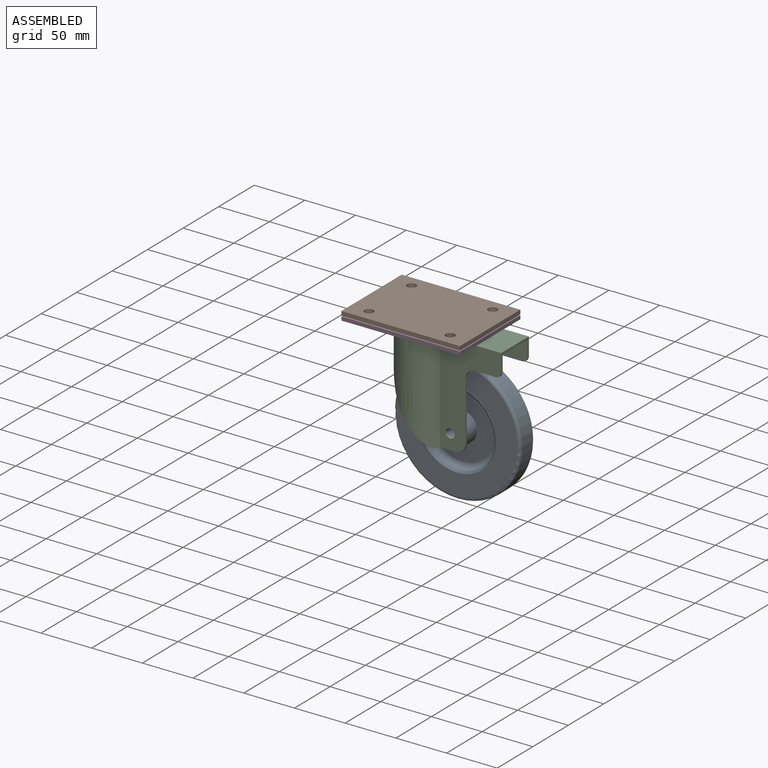
[diagram: assembled view]
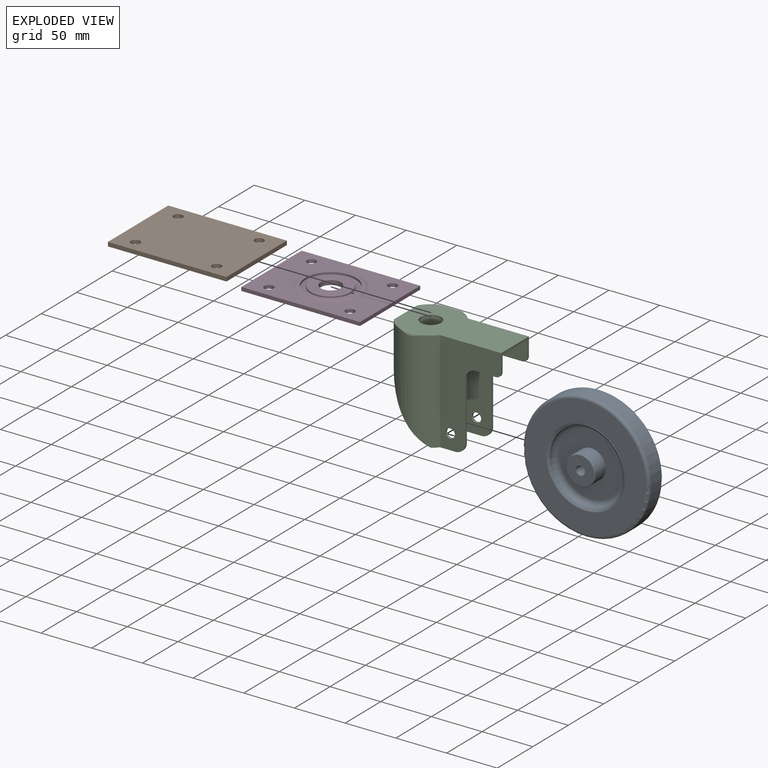
[diagram: exploded view]
GUIDED TOUR — MATED ASSEMBLY (Onshape document e975328ce0a923e729e199c3, AutoMate assembly e975328ce0a923e729e199c3_2dd56eb898bb8aa83c0dddc5_2271837c3e001083fc5a1bf0_default)

This assembly has 4 components, labeled P0..P3 below (a component is one placed occurrence of a part; the same part can appear more than once), held together by 0 mates. A mate is a constraint between two components; its type names the relative motion it leaves free:
Axis/direction vectors are unit vectors and 'through' points are millimeter coordinates, both in the assembly's world frame.

MATES

ASSEMBLY ORDER
  1. P2 — the base component [order verified]
  2. P0 [order verified]
  3. P3 [order verified]
  4. P1 [order verified]
Order-tag legend:
  [order verified] — this step's position reverses a verified removal order: the component was checked to insert without passing through the ones already placed.

Of the 4 components, 3 carry the full construction recipe — the FeatureScript program that regenerates the part's solid from scratch; the rest are supplied as boundary geometry only.
Each toured component is shown spotlighted twice — in the assembled view, then in the exploded view, where a leader line traces a displaced component back to its assembled socket (saturated green if recipe-attached, orange if geometry-only; every other component desaturated gray) — followed by its recipe or geometry summary and the mates that hold it.
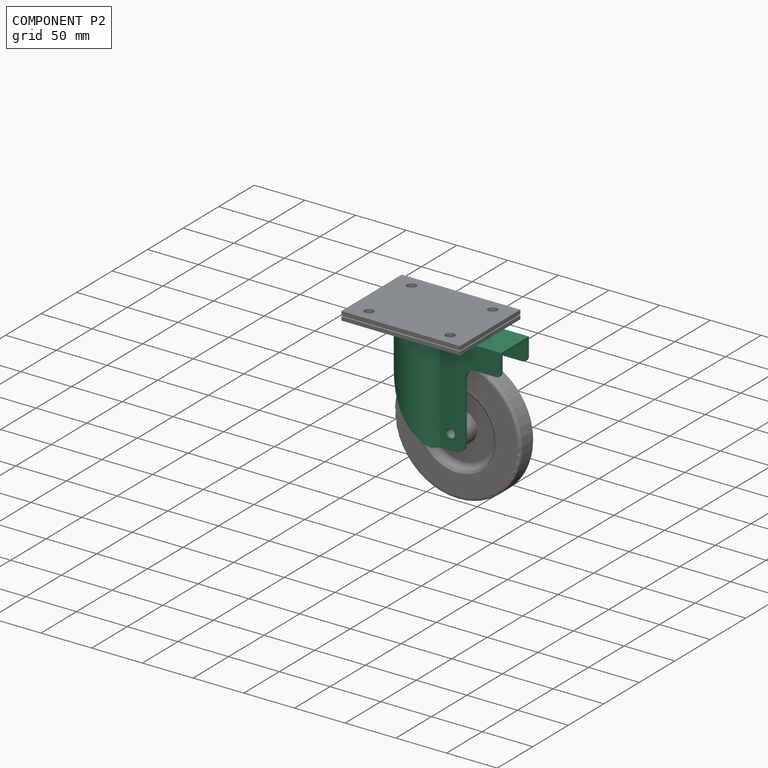
[diagram: component P2 — assembled]
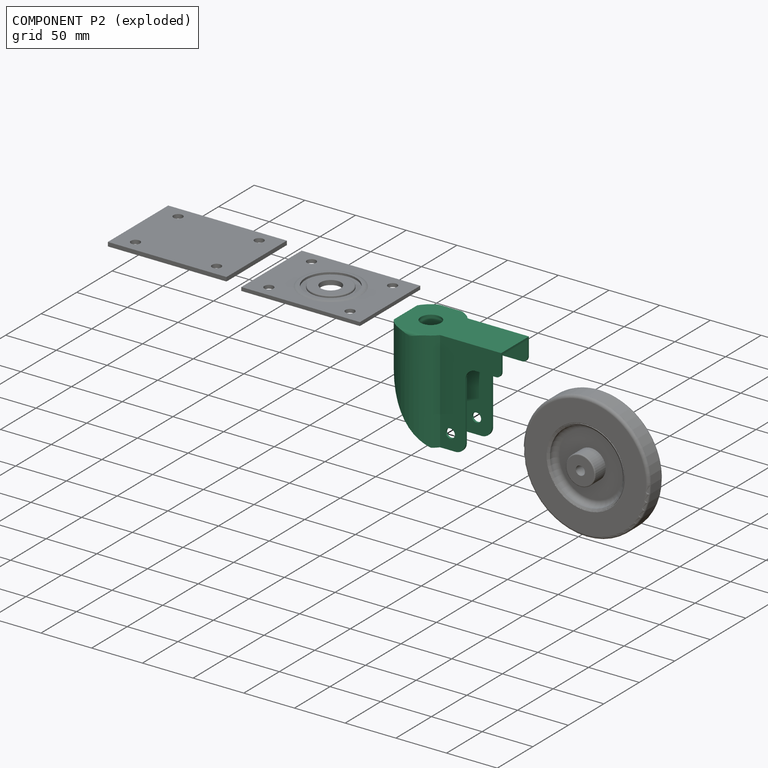
[diagram: component P2 — exploded]
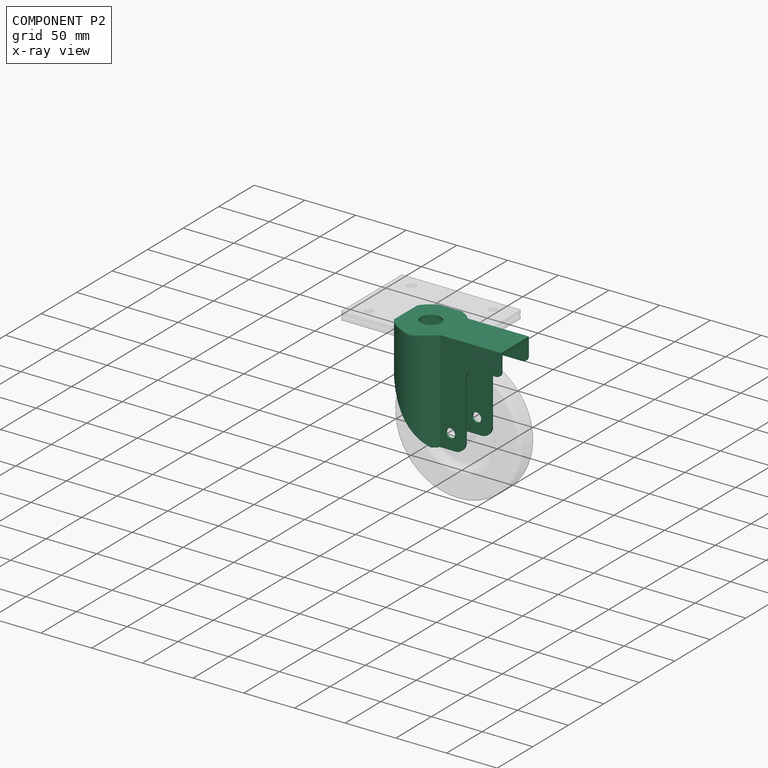
[diagram: component P2 — x-ray view]
COMPONENT P2 — recipe-attached (CADFS 00839897, mesh-verified: the recipe's output STEP matches this component's geometry to below the mesh-comparison resolution (tessellation chordal tolerance ~0.238 mm)).
Held by: no mates (free).
Construction recipe (FeatureScript — the CAD program that rebuilds this solid; sketch coordinates are in the units given by the * unit suffixes, e.g. mm):

FeatureScript 1511;
import(path : "onshape/std/geometry.fs", version : "1511.0");
import(path : "onshape/std/common.fs", version : "1511.0");
const mm = millimeter;
const VERTEX = EntityType.VERTEX;
const EDGE = EntityType.EDGE;
const FACE = EntityType.FACE;
const BODY = EntityType.BODY;
function v(x, y){return vector(x, y);}
function OD(order){return orderDisambiguation(order);}
function OSD(set){return originalSetDisambiguation(set);}
function TD(topology){return topologyDisambiguation(topology);}
function TDD(query){return trueDependencyDisambiguation(query);}
function sQuery(a, b, c) {return sketchEntityQuery(a, b, c);}

annotation { "Feature Type Name" : "Feature", "Feature Type Description" : "" }
export const myFeature = defineFeature(function(context is Context, id is Id, definition is map)
    precondition{}
    {
        {
            var Q0;
            Q0=qCreatedBy(makeId("Top.planeOp"),FACE);
            var sketch = newSketch(context, id + "F0", { "sketchPlane" : qUnion([Q0])});
            skLineSegment(sketch, "E0.bottom", {"start": v(30, -50) * mm, "end": v(17.5, -50) * mm});
            skLineSegment(sketch, "E0.top", {"start": v(27, 50) * mm, "end": v(-27, 50) * mm});
            skLineSegment(sketch, "E0.left", {"start": v(30, -50) * mm, "end": v(30, 47) * mm});
            skLineSegment(sketch, "E0.right", {"start": v(-30, -50) * mm, "end": v(-30, 47) * mm});
            skPoint(sketch, "E0.middle", {"position": v(0, 0) * mm});
            skPoint(sketch, "E1.visualSharp", {"position": v(-30, 50) * mm});
            skArc(sketch, "E1.filletArc", {"start": v(-27, 50) * mm, "mid": v(-29.12, 49.12) * mm, "end": v(-30, 47) * mm});
            skPoint(sketch, "E2.visualSharp", {"position": v(30, 50) * mm});
            skArc(sketch, "E2.filletArc", {"start": v(30, 47) * mm, "mid": v(29.12, 49.12) * mm, "end": v(27, 50) * mm});
            skLineSegment(sketch, "E3.top", {"start": v(17.5, 48) * mm, "end": v(-17.5, 48) * mm});
            skLineSegment(sketch, "E3.left", {"start": v(17.5, -48) * mm, "end": v(17.5, 48) * mm});
            skLineSegment(sketch, "E3.right", {"start": v(-17.5, -48) * mm, "end": v(-17.5, 48) * mm});
            skLineSegment(sketch, "E4", {"start": v(17.5, -48) * mm, "end": v(17.5, -50) * mm});
            skLineSegment(sketch, "E5", {"start": v(-17.5, -48) * mm, "end": v(-17.5, -50) * mm});
            skLineSegment(sketch, "E6.trimOffspring", {"start": v(-17.5, -50) * mm, "end": v(-30, -50) * mm});
            skSolve(sketch);
        }
        {
            var Q0;
            Q0 = qSketchRegion(id + "F0", true);
            extrude(context, id + "F1", {"entities" : qUnion([Q0]), "depth" : 108 * mm, "offsetDistance" : 25 * mm});
        }
        {
            var Q0;
            Q0=makeQuery(id+"F1.opExtrude","SWEPT_FACE",FACE,{"disambiguationData":[OSD([sQuery(id+"F0.wireOp",EDGE,"E6.trimOffspring")])]});
            var sketch = newSketch(context, id + "F2", { "sketchPlane" : qUnion([Q0])});
            skLineSegment(sketch, "E7", {"start": v(-30, 25) * mm, "end": v(30, 25) * mm});
            skCircle(sketch, "E8", {"center": v(0, 25) * mm, "radius": 30 * mm});
            skLineSegment(sketch, "E9", {"start": v(30, 25) * mm, "end": v(30, 0) * mm});
            skLineSegment(sketch, "E10", {"start": v(30, 0) * mm, "end": v(16.58, 0) * mm});
            skLineSegment(sketch, "E11", {"start": v(-30, 25) * mm, "end": v(-30, 0) * mm});
            skLineSegment(sketch, "E12", {"start": v(-30, 0) * mm, "end": v(-16.58, 0) * mm});
            skSolve(sketch);
        }
        {
            var Q0;
            {var subQ0=sQuery(id+"F2.wireOp",EDGE,"E9");Q0=makeQuery(id+"F2.imprint","IMPRINT",FACE,{"disambiguationData":[TD([[makeQuery(id+"F2.imprint","IMPRINT",EDGE,{"derivedFrom":subQ0}),-1.0]])]});}
            var Q1;
            {var subQ0=sQuery(id+"F2.wireOp",EDGE,"E11");Q1=makeQuery(id+"F2.imprint","IMPRINT",FACE,{"disambiguationData":[TD([[makeQuery(id+"F2.imprint","IMPRINT",EDGE,{"derivedFrom":subQ0}),1.0]])]});}
            var Q2;
            {var subQ0=sQuery(id+"F2.wireOp",EDGE,"E12");var subQ1=sQuery(id+"F2.wireOp",EDGE,"E8");var subQ2=makeQuery(id+"F2.imprint","INTERSECT",VERTEX,{"derivedFrom":[subQ1,subQ0]});Q2=makeQuery(id+"F2.imprint","IMPRINT",FACE,{"disambiguationData":[TD([[makeQuery(id+"F2.imprint","IMPRINT",EDGE,{"disambiguationData":[TD([[subQ2,1.0]])],"derivedFrom":subQ1}),-1.0]])]});}
            extrude(context, id + "F3", {"entities" : qUnion([Q0, Q1, Q2]), "operationType" : NewBodyOperationType.REMOVE, "oppositeDirection" : true, "depth" : 150 * mm, "offsetDistance" : 25 * mm});
        }
        {
            var Q0;
            Q0=makeQuery(id+"F1.opExtrude","SWEPT_FACE",FACE,{"disambiguationData":[OSD([sQuery(id+"F0.wireOp",EDGE,"E6.trimOffspring")])]});
            var sketch = newSketch(context, id + "F4", { "sketchPlane" : qUnion([Q0])});
            skCircle(sketch, "E13", {"center": v(0, 25) * mm, "radius": 30 * mm});
            skCircle(sketch, "E14", {"center": v(0, 25) * mm, "radius": 28 * mm});
            skLineSegment(sketch, "E15", {"start": v(-19.5, 45.1) * mm, "end": v(-19.5, 108) * mm});
            skLineSegment(sketch, "E16", {"start": v(19.5, 45.1) * mm, "end": v(19.5, 108) * mm});
            skLineSegment(sketch, "E17", {"start": v(-17.5, 46.86) * mm, "end": v(-17.5, 3.14) * mm});
            skLineSegment(sketch, "E18", {"start": v(17.5, 46.86) * mm, "end": v(17.5, 3.14) * mm});
            skLineSegment(sketch, "E19", {"start": v(19.5, 108) * mm, "end": v(30, 108) * mm});
            skLineSegment(sketch, "E20", {"start": v(30, 108) * mm, "end": v(30, 25) * mm});
            skSolve(sketch);
        }
        {
            var Q0;
            {var subQ2=sQuery(id+"F4.wireOp",EDGE,"E17");Q0=makeQuery(id+"F4.imprint","IMPRINT",FACE,{"disambiguationData":[TD([[makeQuery(id+"F4.imprint","IMPRINT",EDGE,{"derivedFrom":subQ2}),-1.0]])]});}
            var Q1;
            {var subQ2=sQuery(id+"F4.wireOp",EDGE,"E18");Q1=makeQuery(id+"F4.imprint","IMPRINT",FACE,{"disambiguationData":[TD([[makeQuery(id+"F4.imprint","IMPRINT",EDGE,{"derivedFrom":subQ2}),1.0]])]});}
            extrude(context, id + "F5", {"entities" : qUnion([Q0, Q1]), "operationType" : NewBodyOperationType.REMOVE, "oppositeDirection" : true, "depth" : 98 * mm, "offsetDistance" : 25 * mm});
        }
        {
            var Q0;
            Q0=makeQuery(id+"F1.opExtrude","SWEPT_FACE",FACE,{"disambiguationData":[OSD([sQuery(id+"F0.wireOp",EDGE,"E0.left")])]});
            var sketch = newSketch(context, id + "F6", { "sketchPlane" : qUnion([Q0])});
            skLineSegment(sketch, "E21", {"start": v(-50, 0) * mm, "end": v(10, 0) * mm});
            skArc(sketch, "E22", {"start": v(-50, 42.31) * mm, "mid": v(-24.02, 15.45) * mm, "end": v(10, 0) * mm});
            skLineSegment(sketch, "E23", {"start": v(-50, 42.31) * mm, "end": v(-50, 0) * mm});
            skSolve(sketch);
        }
        {
            var Q0;
            Q0 = qSketchRegion(id + "F6", true);
            extrude(context, id + "F7", {"entities" : qUnion([Q0]), "operationType" : NewBodyOperationType.REMOVE, "oppositeDirection" : true, "depth" : 100 * mm, "offsetDistance" : 25 * mm});
        }
        {
            var Q0;
            {var subQ1=sQuery(id+"F0.wireOp",EDGE,"E6.trimOffspring");var subQ2=makeQuery(id+"F1.opExtrude","SWEPT_EDGE",EDGE,{"disambiguationData":[OSD([sQuery(id+"F0.wireOp",EDGE,"E0.right"),subQ1])]});Q0=makeQuery(id+"F4.imprint","IMPRINT",FACE,{"disambiguationData":[TD([[makeQuery(id+"F4.imprint","IMPRINT",EDGE,{"derivedFrom":subQ2}),1.0]])]});}
            var Q1;
            {var subQ4=sQuery(id+"F4.wireOp",EDGE,"E19");Q1=makeQuery(id+"F4.imprint","IMPRINT",FACE,{"disambiguationData":[TD([[makeQuery(id+"F4.imprint","IMPRINT",EDGE,{"derivedFrom":subQ4}),-1.0]])]});}
            extrude(context, id + "F8", {"entities" : qUnion([Q0, Q1]), "operationType" : NewBodyOperationType.REMOVE, "oppositeDirection" : true, "depth" : 100 * mm, "offsetDistance" : 25 * mm});
        }
        {
            var Q0;
            Q0=makeQuery(id+"F8.boolean.opBoolean","COPY",FACE,{"derivedFrom":makeQuery(id+"F8.opExtrude","SWEPT_FACE",FACE,{"disambiguationData":[OSD([sQuery(id+"F4.wireOp",EDGE,"E16")])]})});
            var sketch = newSketch(context, id + "F9", { "sketchPlane" : qUnion([Q0])});
            skLineSegment(sketch, "E24", {"start": v(-40, 72.8) * mm, "end": v(17.24, 72.8) * mm});
            skLineSegment(sketch, "E25", {"start": v(27.24, 82.8) * mm, "end": v(27.24, 103) * mm});
            skLineSegment(sketch, "E26", {"start": v(32.24, 108) * mm, "end": v(37.5, 108) * mm});
            skPoint(sketch, "E27.visualSharp", {"position": v(27.24, 72.8) * mm});
            skArc(sketch, "E27.filletArc", {"start": v(17.24, 72.8) * mm, "mid": v(24.31, 75.73) * mm, "end": v(27.24, 82.8) * mm});
            skPoint(sketch, "E28.visualSharp", {"position": v(27.24, 108) * mm});
            skArc(sketch, "E28.filletArc", {"start": v(32.24, 108) * mm, "mid": v(28.7, 106.54) * mm, "end": v(27.24, 103) * mm});
            skLineSegment(sketch, "E29", {"start": v(-50, 62.8) * mm, "end": v(-50, 47.8) * mm});
            skPoint(sketch, "E30.visualSharp", {"position": v(-50, 72.8) * mm});
            skArc(sketch, "E30.filletArc", {"start": v(-40, 72.8) * mm, "mid": v(-47.07, 69.87) * mm, "end": v(-50, 62.8) * mm});
            skSolve(sketch);
        }
        {
            var Q0;
            Q0 = qSketchRegion(id + "F9", true);
            var Q1;
            {var subQ1=sQuery(id+"F9.wireOp",EDGE,"E24");Q1=makeQuery(id+"F9.imprint","IMPRINT",FACE,{"disambiguationData":[TD([[makeQuery(id+"F9.imprint","IMPRINT",EDGE,{"derivedFrom":subQ1}),1.0]])]});}
            extrude(context, id + "F10", {"entities" : qUnion([Q0, Q1]), "operationType" : NewBodyOperationType.REMOVE, "oppositeDirection" : true, "depth" : 100 * mm, "offsetDistance" : 25 * mm});
        }
        {
            var Q0;
            Q0=makeQuery(id+"F1.opExtrude","SWEPT_FACE",FACE,{"disambiguationData":[OSD([sQuery(id+"F0.wireOp",EDGE,"E0.top")])]});
            var sketch = newSketch(context, id + "F11", { "sketchPlane" : qUnion([Q0])});
            skCircle(sketch, "E31", {"center": v(0, 25) * mm, "radius": 10 * mm});
            skSolve(sketch);
        }
        {
            var Q0;
            Q0 = qSketchRegion(id + "F11", true);
            extrude(context, id + "F12", {"entities" : qUnion([Q0]), "operationType" : NewBodyOperationType.REMOVE, "oppositeDirection" : true, "depth" : 25 * mm, "offsetDistance" : 25 * mm});
        }
        {
            var Q0;
            Q0=makeQuery(id+"F8.boolean.opBoolean","COPY",FACE,{"derivedFrom":makeQuery(id+"F8.opExtrude","SWEPT_FACE",FACE,{"disambiguationData":[OSD([sQuery(id+"F4.wireOp",EDGE,"E15")])]})});
            var sketch = newSketch(context, id + "F13", { "sketchPlane" : qUnion([Q0])});
            skCircle(sketch, "E32", {"center": v(35, 57.8) * mm, "radius": 4.5 * mm});
            skLineSegment(sketch, "E33", {"start": v(35, 57.8) * mm, "end": v(50, 57.8) * mm});
            skLineSegment(sketch, "E34", {"start": v(35, 57.8) * mm, "end": v(35, 72.8) * mm});
            skSolve(sketch);
        }
        {
            var Q0;
            Q0 = qSketchRegion(id + "F13", true);
            extrude(context, id + "F14", {"entities" : qUnion([Q0]), "operationType" : NewBodyOperationType.REMOVE, "oppositeDirection" : true, "depth" : 100 * mm, "offsetDistance" : 25 * mm});
        }
    });
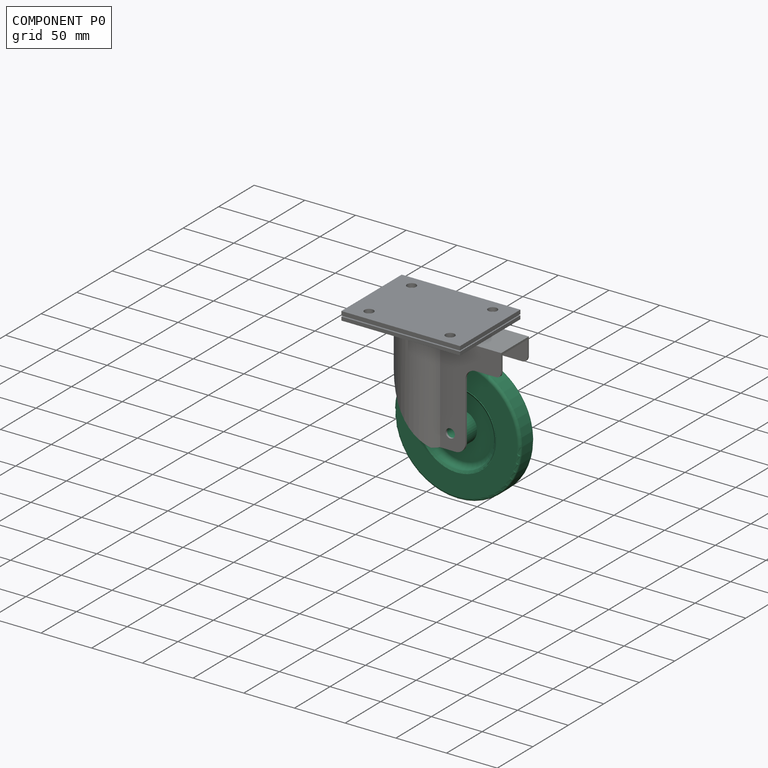
[diagram: component P0 — assembled]
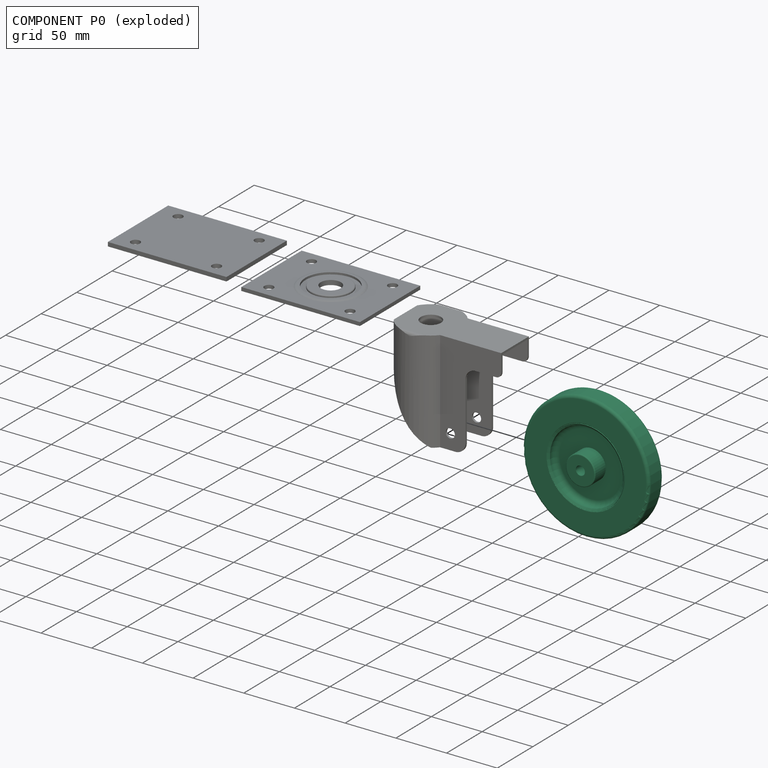
[diagram: component P0 — exploded]
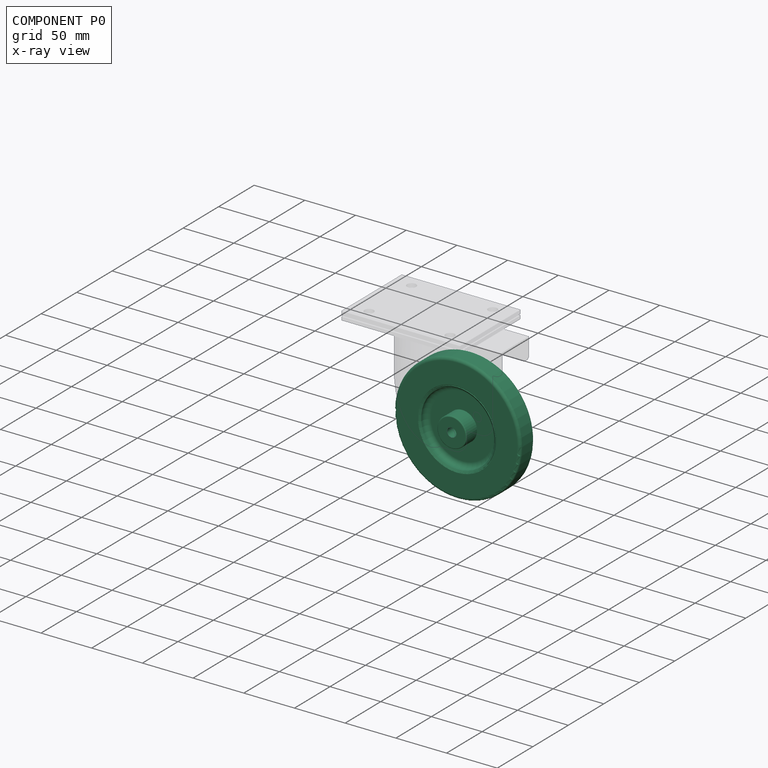
[diagram: component P0 — x-ray view]
COMPONENT P0 — recipe-attached (CADFS 00839898, mesh-verified: the recipe's output STEP matches this component's geometry to below the mesh-comparison resolution (tessellation chordal tolerance ~0.27 mm)).
Held by: no mates (free).
Construction recipe (FeatureScript — the CAD program that rebuilds this solid; sketch coordinates are in the units given by the * unit suffixes, e.g. mm):

FeatureScript 1511;
import(path : "onshape/std/geometry.fs", version : "1511.0");
import(path : "onshape/std/common.fs", version : "1511.0");
const mm = millimeter;
const VERTEX = EntityType.VERTEX;
const EDGE = EntityType.EDGE;
const FACE = EntityType.FACE;
const BODY = EntityType.BODY;
function v(x, y){return vector(x, y);}
function OD(order){return orderDisambiguation(order);}
function OSD(set){return originalSetDisambiguation(set);}
function TD(topology){return topologyDisambiguation(topology);}
function TDD(query){return trueDependencyDisambiguation(query);}
function sQuery(a, b, c) {return sketchEntityQuery(a, b, c);}

annotation { "Feature Type Name" : "Feature", "Feature Type Description" : "" }
export const myFeature = defineFeature(function(context is Context, id is Id, definition is map)
    precondition{}
    {
        {
            var Q0;
            Q0=qCreatedBy(makeId("Top.planeOp"),FACE);
            var sketch = newSketch(context, id + "F0", { "sketchPlane" : qUnion([Q0])});
            skLineSegment(sketch, "E0", {"start": v(-40.1, 0) * mm, "end": v(41.82, 0) * mm, "construction": true});
            skLineSegment(sketch, "E1", {"start": v(0.86, 0) * mm, "end": v(0.86, 62.5) * mm, "construction": true});
            skLineSegment(sketch, "E2", {"start": v(0.86, 62.5) * mm, "end": v(-6.14, 62.5) * mm});
            skLineSegment(sketch, "E3", {"start": v(-1.64, 31.04) * mm, "end": v(-1.64, 14.5) * mm});
            skLineSegment(sketch, "E4", {"start": v(-1.64, 14.5) * mm, "end": v(-15.64, 14.5) * mm});
            skLineSegment(sketch, "E5", {"start": v(-16.64, 13.5) * mm, "end": v(-16.64, 4.5) * mm});
            skLineSegment(sketch, "E6", {"start": v(-16.64, 4.5) * mm, "end": v(0.86, 4.5) * mm});
            skLineSegment(sketch, "E7", {"start": v(-8.14, 37.5) * mm, "end": v(0.86, 37.5) * mm});
            skPoint(sketch, "E8.visualSharp", {"position": v(-3.83, 39.13) * mm});
            skPoint(sketch, "E9.visualSharp", {"position": v(-1.64, 37.5) * mm});
            skLineSegment(sketch, "E10", {"start": v(-8.14, 37.5) * mm, "end": v(-8.66, 38.05) * mm});
            skLineSegment(sketch, "E11", {"start": v(-8.66, 38.05) * mm, "end": v(-9.27, 38.05) * mm});
            skLineSegment(sketch, "E12", {"start": v(-6.64, 36.04) * mm, "end": v(-8.14, 36.04) * mm});
            skLineSegment(sketch, "E13", {"start": v(-8.14, 36.04) * mm, "end": v(-9.36, 37.9) * mm});
            skPoint(sketch, "E14.visualSharp", {"position": v(-9.46, 38.05) * mm});
            skArc(sketch, "E14.filletArc", {"start": v(-9.27, 38.05) * mm, "mid": v(-9.36, 38) * mm, "end": v(-9.36, 37.9) * mm});
            skPoint(sketch, "E15.visualSharp", {"position": v(-1.64, 36.04) * mm});
            skArc(sketch, "E15.filletArc", {"start": v(-1.64, 31.04) * mm, "mid": v(-3.1, 34.58) * mm, "end": v(-6.64, 36.04) * mm});
            skLineSegment(sketch, "E16", {"start": v(-9.14, 59.5) * mm, "end": v(-9.14, 38.57) * mm});
            skLineSegment(sketch, "E17", {"start": v(-9.14, 38.57) * mm, "end": v(-8.14, 37.5) * mm});
            skPoint(sketch, "E18.visualSharp", {"position": v(-9.14, 62.5) * mm});
            skArc(sketch, "E18.filletArc", {"start": v(-6.14, 62.5) * mm, "mid": v(-8.26, 61.62) * mm, "end": v(-9.14, 59.5) * mm});
            skLineSegment(sketch, "E19.MirrorCS", {"start": v(0.86, 62.5) * mm, "end": v(7.86, 62.5) * mm});
            skArc(sketch, "E20.MirrorCS", {"start": v(7.86, 62.5) * mm, "mid": v(9.98, 61.62) * mm, "end": v(10.86, 59.5) * mm});
            skLineSegment(sketch, "E21.MirrorCS", {"start": v(10.86, 59.5) * mm, "end": v(10.86, 38.57) * mm});
            skLineSegment(sketch, "E22.MirrorCS", {"start": v(10.86, 38.57) * mm, "end": v(9.86, 37.5) * mm});
            skLineSegment(sketch, "E23.MirrorCS", {"start": v(9.86, 37.5) * mm, "end": v(0.86, 37.5) * mm});
            skLineSegment(sketch, "E24.MirrorCS", {"start": v(9.86, 37.5) * mm, "end": v(10.37, 38.05) * mm});
            skLineSegment(sketch, "E25.MirrorCS", {"start": v(10.37, 38.05) * mm, "end": v(10.99, 38.05) * mm});
            skArc(sketch, "E26.MirrorCS", {"start": v(10.99, 38.05) * mm, "mid": v(11.08, 38) * mm, "end": v(11.07, 37.9) * mm});
            skLineSegment(sketch, "E27.MirrorCS", {"start": v(9.86, 36.04) * mm, "end": v(11.07, 37.9) * mm});
            skLineSegment(sketch, "E28.MirrorCS", {"start": v(8.36, 36.04) * mm, "end": v(9.86, 36.04) * mm});
            skArc(sketch, "E29.MirrorCS", {"start": v(3.36, 31.04) * mm, "mid": v(4.82, 34.58) * mm, "end": v(8.36, 36.04) * mm});
            skLineSegment(sketch, "E30.MirrorCS", {"start": v(3.36, 31.04) * mm, "end": v(3.36, 14.5) * mm});
            skLineSegment(sketch, "E31.MirrorCS", {"start": v(3.36, 14.5) * mm, "end": v(17.36, 14.5) * mm});
            skLineSegment(sketch, "E32.MirrorCS", {"start": v(18.36, 13.5) * mm, "end": v(18.36, 4.5) * mm});
            skLineSegment(sketch, "E33.MirrorCS", {"start": v(18.36, 4.5) * mm, "end": v(0.86, 4.5) * mm});
            skPoint(sketch, "E34.visualSharp", {"position": v(-16.64, 14.5) * mm});
            skArc(sketch, "E34.filletArc", {"start": v(-15.64, 14.5) * mm, "mid": v(-16.35, 14.2) * mm, "end": v(-16.64, 13.5) * mm});
            skPoint(sketch, "E35.visualSharp", {"position": v(18.36, 14.5) * mm});
            skArc(sketch, "E35.filletArc", {"start": v(18.36, 13.5) * mm, "mid": v(18.07, 14.2) * mm, "end": v(17.36, 14.5) * mm});
            skSolve(sketch);
        }
        {
            var Q0;
            Q0=makeQuery(id+"F0.imprint","IMPRINT",FACE,{"disambiguationData":[TD([[makeQuery(id+"F0.imprint","IMPRINT",EDGE,{"derivedFrom":sQuery(id+"F0.wireOp",EDGE,"E3")}),1.0]])]});
            var Q1;
            Q1=makeQuery(id+"F0.imprint","IMPRINT",FACE,{"disambiguationData":[TD([[makeQuery(id+"F0.imprint","IMPRINT",EDGE,{"derivedFrom":sQuery(id+"F0.wireOp",EDGE,"E2")}),1.0]])]});
            var Q2;
            Q2=sQuery(id+"F0.wireOp",EDGE,"E0");
            revolve(context, id + "F1", {"surfaceOperationType" : NewSurfaceOperationType.NEW, "entities" : qUnion([Q0, Q1]), "axis" : qUnion([Q2]), "revolveType" : RevolveType.FULL});
        }
    });
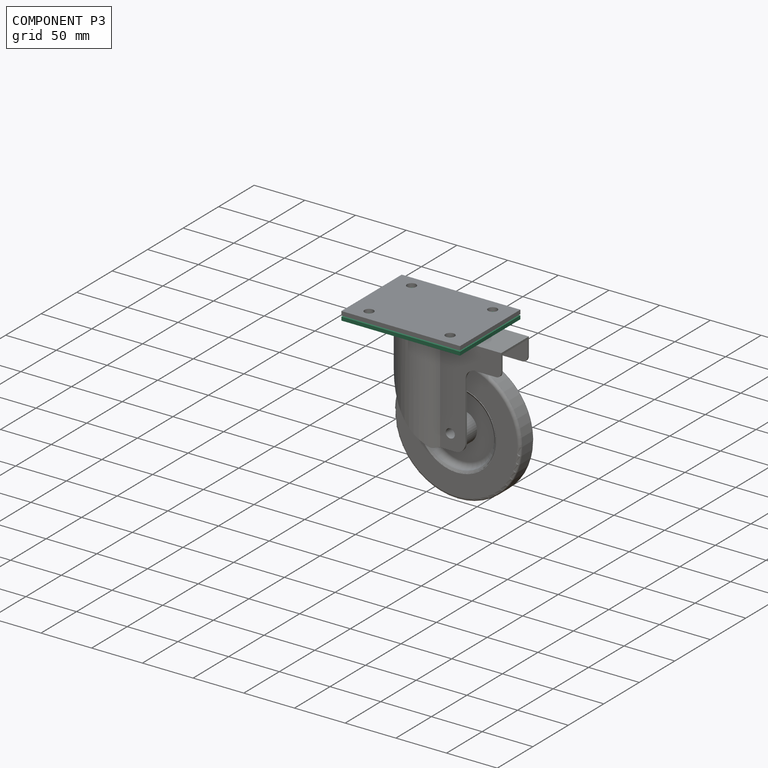
[diagram: component P3 — assembled]
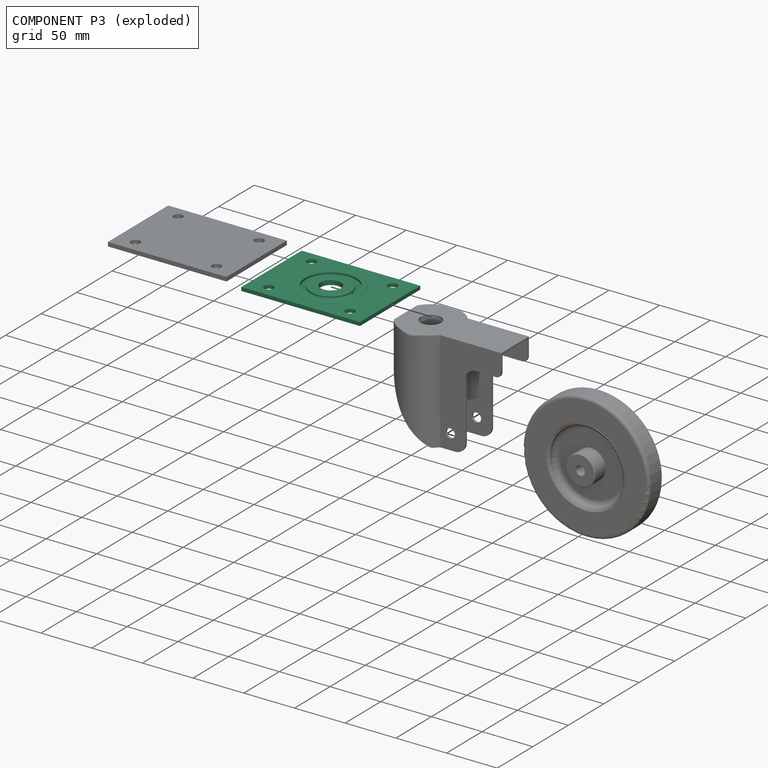
[diagram: component P3 — exploded]
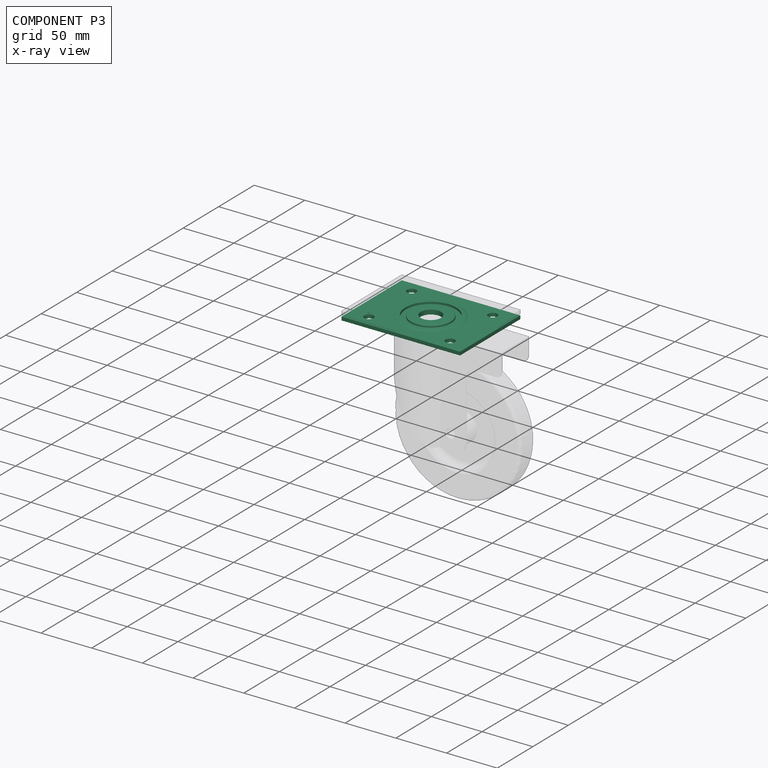
[diagram: component P3 — x-ray view]
COMPONENT P3 — recipe-attached (CADFS 00839896, mesh-verified: the recipe's output STEP matches this component's geometry to below the mesh-comparison resolution (tessellation chordal tolerance ~0.217 mm)).
Held by: no mates (free).
Construction recipe (FeatureScript — the CAD program that rebuilds this solid; sketch coordinates are in the units given by the * unit suffixes, e.g. mm):

FeatureScript 1511;
import(path : "onshape/std/geometry.fs", version : "1511.0");
import(path : "onshape/std/common.fs", version : "1511.0");
const mm = millimeter;
const VERTEX = EntityType.VERTEX;
const EDGE = EntityType.EDGE;
const FACE = EntityType.FACE;
const BODY = EntityType.BODY;
function v(x, y){return vector(x, y);}
function OD(order){return orderDisambiguation(order);}
function OSD(set){return originalSetDisambiguation(set);}
function TD(topology){return topologyDisambiguation(topology);}
function TDD(query){return trueDependencyDisambiguation(query);}
function sQuery(a, b, c) {return sketchEntityQuery(a, b, c);}

annotation { "Feature Type Name" : "Feature", "Feature Type Description" : "" }
export const myFeature = defineFeature(function(context is Context, id is Id, definition is map)
    precondition{}
    {
        {
            var Q0;
            Q0=qCreatedBy(makeId("Top.planeOp"),FACE);
            var sketch = newSketch(context, id + "F0", { "sketchPlane" : qUnion([Q0])});
            skLineSegment(sketch, "E0.bottom", {"start": v(58.5, -42.5) * mm, "end": v(-58.5, -42.5) * mm});
            skLineSegment(sketch, "E0.top", {"start": v(58.5, 42.5) * mm, "end": v(-58.5, 42.5) * mm});
            skLineSegment(sketch, "E0.left", {"start": v(58.5, -42.5) * mm, "end": v(58.5, 42.5) * mm});
            skLineSegment(sketch, "E0.right", {"start": v(-58.5, -42.5) * mm, "end": v(-58.5, 42.5) * mm});
            skPoint(sketch, "E0.middle", {"position": v(0, 0) * mm});
            skSolve(sketch);
        }
        {
            var Q0;
            Q0 = qSketchRegion(id + "F0", true);
            extrude(context, id + "F1", {"entities" : qUnion([Q0]), "depth" : 3.5 * mm, "offsetDistance" : 25 * mm});
        }
        {
            var Q0;
            Q0=makeQuery(id+"F1.opExtrude","CAP_FACE",FACE,{"disambiguationData":[OSD([sQuery(id+"F0.wireOp",EDGE,"E0.bottom"),sQuery(id+"F0.wireOp",EDGE,"E0.top"),sQuery(id+"F0.wireOp",EDGE,"E0.left"),sQuery(id+"F0.wireOp",EDGE,"E0.right")])],"isStart":false});
            var sketch = newSketch(context, id + "F2", { "sketchPlane" : qUnion([Q0])});
            skLineSegment(sketch, "E1.bottom", {"start": v(40, -30) * mm, "end": v(-40, -30) * mm, "construction": true});
            skLineSegment(sketch, "E1.top", {"start": v(40, 30) * mm, "end": v(-40, 30) * mm, "construction": true});
            skLineSegment(sketch, "E1.left", {"start": v(40, -30) * mm, "end": v(40, 30) * mm, "construction": true});
            skLineSegment(sketch, "E1.right", {"start": v(-40, -30) * mm, "end": v(-40, 30) * mm, "construction": true});
            skPoint(sketch, "E1.middle", {"position": v(0, 0) * mm});
            skCircle(sketch, "E2", {"center": v(40, 30) * mm, "radius": 4.5 * mm});
            skCircle(sketch, "E3", {"center": v(-40, 30) * mm, "radius": 4.5 * mm});
            skCircle(sketch, "E4", {"center": v(-40, -30) * mm, "radius": 4.5 * mm});
            skCircle(sketch, "E5", {"center": v(40, -30) * mm, "radius": 4.5 * mm});
            skSolve(sketch);
        }
        {
            var Q0;
            Q0 = qSketchRegion(id + "F2", true);
            extrude(context, id + "F3", {"entities" : qUnion([Q0]), "operationType" : NewBodyOperationType.REMOVE, "oppositeDirection" : true, "depth" : 25 * mm, "offsetDistance" : 25 * mm});
        }
        {
            var Q0;
            Q0=makeQuery(id+"F1.opExtrude","CAP_FACE",FACE,{"disambiguationData":[OSD([sQuery(id+"F0.wireOp",EDGE,"E0.bottom"),sQuery(id+"F0.wireOp",EDGE,"E0.top"),sQuery(id+"F0.wireOp",EDGE,"E0.left"),sQuery(id+"F0.wireOp",EDGE,"E0.right")])],"isStart":false});
            var sketch = newSketch(context, id + "F4", { "sketchPlane" : qUnion([Q0])});
            skCircle(sketch, "E6", {"center": v(0, 0) * mm, "radius": 30 * mm});
            skSolve(sketch);
        }
        {
            var Q0;
            Q0 = qSketchRegion(id + "F4", true);
            extrude(context, id + "F5", {"entities" : qUnion([Q0]), "operationType" : NewBodyOperationType.ADD, "depth" : 1 * mm, "offsetDistance" : 25 * mm});
        }
        {
            var Q0;
            Q0=makeQuery(id+"F5.opExtrude","CAP_EDGE",EDGE,{"disambiguationData":[OSD([sQuery(id+"F4.wireOp",EDGE,"E6")])],"isStart":false});
            fillet(context, id + "F6", {"entities" : qUnion([Q0]), "radius" : 5 * mm, "tangentPropagation" : true, "allowEdgeOverflow" : false});
        }
        {
            var Q0;
            Q0=makeQuery(id+"F5.opExtrude","CAP_FACE",FACE,{"disambiguationData":[OSD([sQuery(id+"F4.wireOp",EDGE,"E6")])],"isStart":false});
            var sketch = newSketch(context, id + "F7", { "sketchPlane" : qUnion([Q0])});
            skCircle(sketch, "E7", {"center": v(0, 0) * mm, "radius": 25 * mm});
            skSolve(sketch);
        }
        {
            var Q0;
            Q0 = qSketchRegion(id + "F7", true);
            extrude(context, id + "F8", {"entities" : qUnion([Q0]), "operationType" : NewBodyOperationType.REMOVE, "oppositeDirection" : true, "depth" : 2 * mm, "offsetDistance" : 25 * mm});
        }
        {
            var Q0;
            Q0=makeQuery(id+"F8.boolean.opBoolean","COPY",FACE,{"derivedFrom":makeQuery(id+"F8.opExtrude","CAP_FACE",FACE,{"disambiguationData":[OSD([sQuery(id+"F7.wireOp",EDGE,"E7")])],"isStart":false})});
            var sketch = newSketch(context, id + "F9", { "sketchPlane" : qUnion([Q0])});
            skCircle(sketch, "E8", {"center": v(0, 0) * mm, "radius": 20 * mm});
            skSolve(sketch);
        }
        {
            var Q0;
            Q0 = qSketchRegion(id + "F9", true);
            extrude(context, id + "F10", {"entities" : qUnion([Q0]), "operationType" : NewBodyOperationType.ADD, "depth" : 2 * mm, "offsetDistance" : 25 * mm});
        }
        {
            var Q0;
            Q0=makeQuery(id+"F10.opExtrude","CAP_EDGE",EDGE,{"disambiguationData":[OSD([sQuery(id+"F9.wireOp",EDGE,"E8")])],"isStart":false});
            fillet(context, id + "F11", {"entities" : qUnion([Q0]), "radius" : 1 * mm, "tangentPropagation" : true, "allowEdgeOverflow" : false});
        }
        {
            var Q0;
            Q0=makeQuery(id+"F10.opExtrude","CAP_FACE",FACE,{"disambiguationData":[OSD([sQuery(id+"F9.wireOp",EDGE,"E8")])],"isStart":false});
            var sketch = newSketch(context, id + "F12", { "sketchPlane" : qUnion([Q0])});
            skCircle(sketch, "E9", {"center": v(0, 0) * mm, "radius": 10 * mm});
            skSolve(sketch);
        }
        {
            var Q0;
            Q0 = qSketchRegion(id + "F12", true);
            extrude(context, id + "F13", {"entities" : qUnion([Q0]), "operationType" : NewBodyOperationType.REMOVE, "oppositeDirection" : true, "depth" : 25 * mm, "offsetDistance" : 25 * mm});
        }
    });
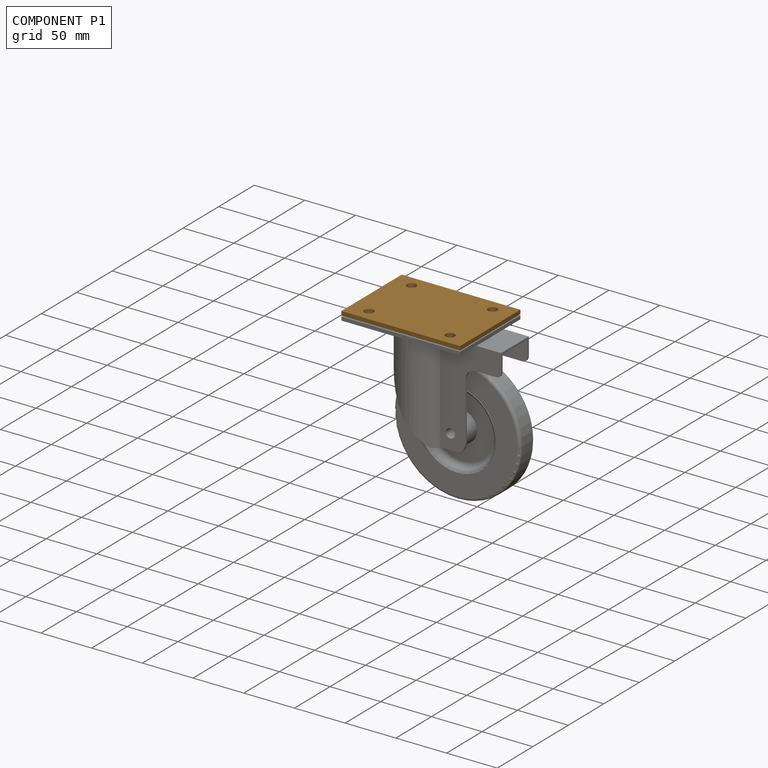
[diagram: component P1 — assembled]
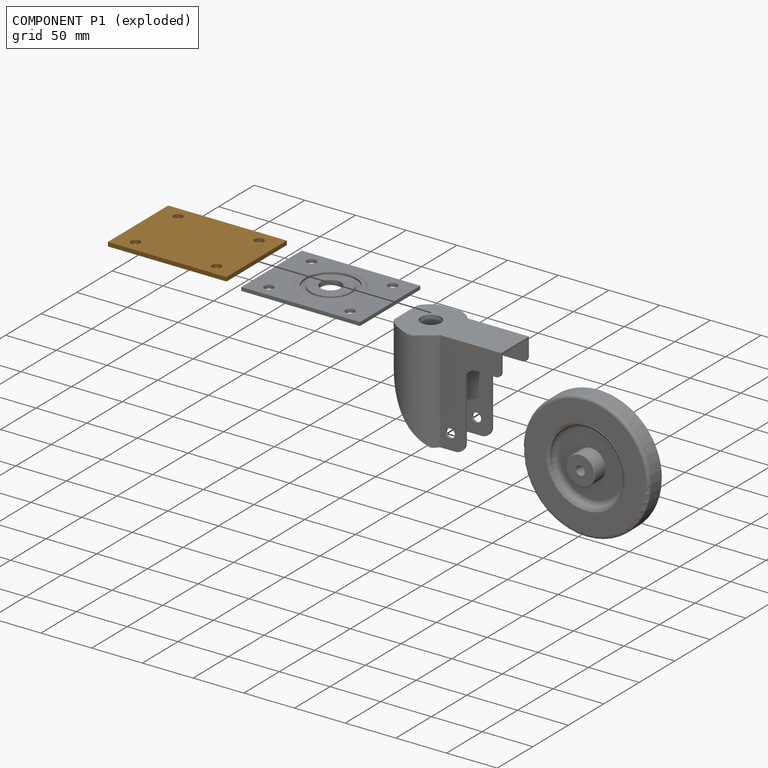
[diagram: component P1 — exploded]
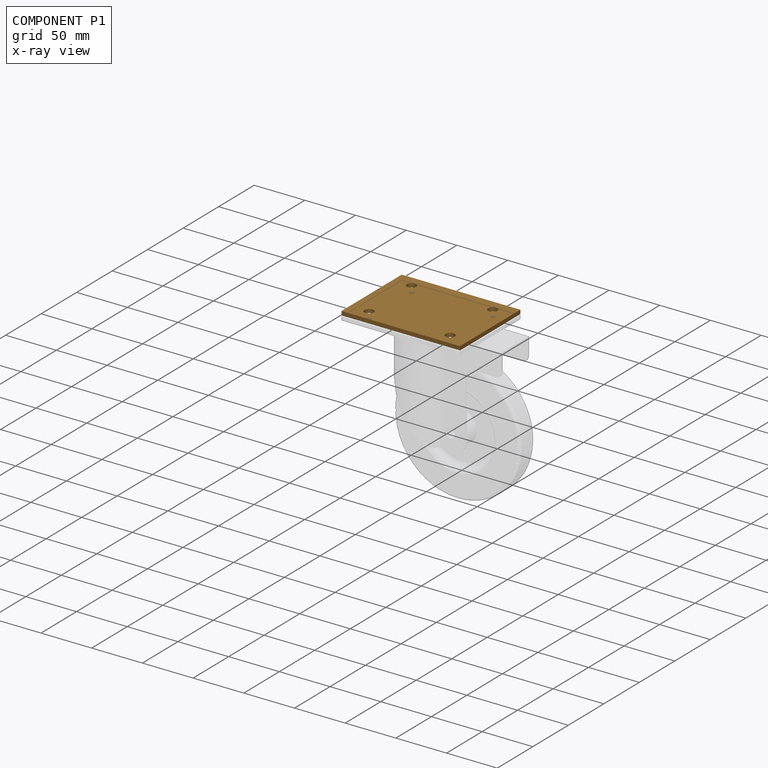
[diagram: component P1 — x-ray view]
COMPONENT P1 — geometry summary (no construction recipe available for this part):
  bounding box: 117.0 x 85.0 x 4.0 mm
  B-rep topology: 1 solid, 10 faces, 48 edges
  volume: 38762 mm^3 (97% of its bounding box)
  symmetry: 2-fold rotationally symmetric about the x axis; 2-fold rotationally symmetric about the y axis; 2-fold rotationally symmetric about the z axis; mirror-symmetric across its x mid-plane, y mid-plane, z mid-plane
Held by: no mates (free).
PROVENANCE & LICENSES
Assembly (occurrences, transforms, mates, per-part STEP geometry): AutoMate dataset, Zenodo record 7776208, CC0.
Construction recipes: CADFS (HuggingFace VladPyatov/CADFS, CC-BY-4.0, layered over the ABC dataset), FeatureScript reconstruction programs keyed by ABC model id.
Join: ABC meta listings map ABC model id -> Onshape documentId; within a shared document, parts are matched by geometric signature (bounding-box dims + volume at 0.1% relative tolerance, exact B-rep face/solid counts).
Verification: 3 of this assembly's 4 components carry a recipe attachment, and every attachment is mesh-verified: the CADFS STEP and the AutoMate member STEP were compared as meshes in their shared local frame (symmetric sampled-point-to-mesh distance); worst across the 3 attachments: below the mesh-comparison resolution (tessellation chordal tolerance ~0.27 mm) on a 180 mm part.
Renders: orthographic iso camera (az 35 / el 25); the floor grid conveys scale (grid pitch printed in each image; no ruler). In the exploded view each component is displaced by its stored offset vector: the offsets alone carry the explosion direction (mate normal/axis signs are not orientation cues and do not encode it), and separation distances are assigned per mate-chain, not proportionally to assembly-order depth.
